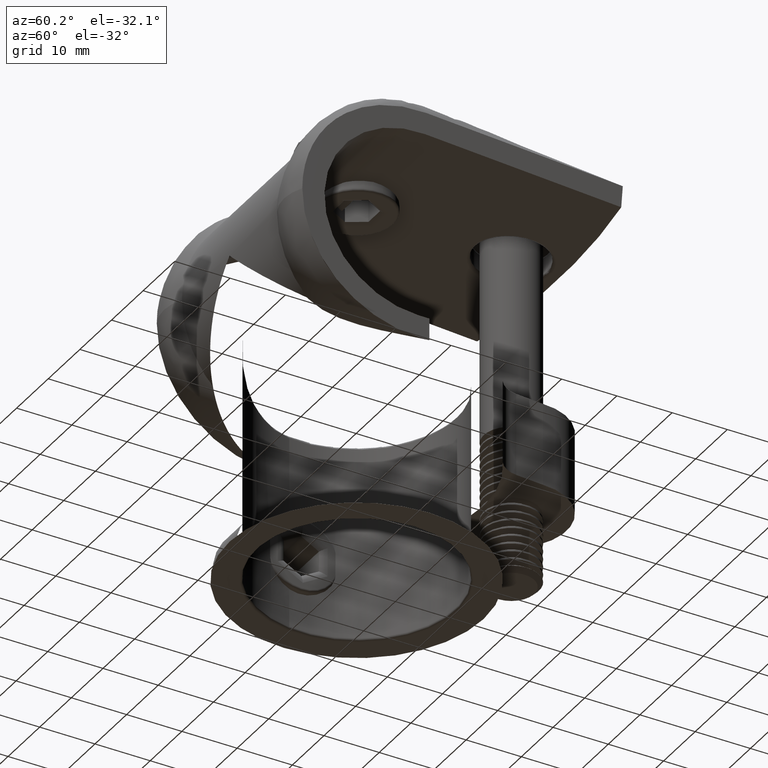
[diagram: clean part render]
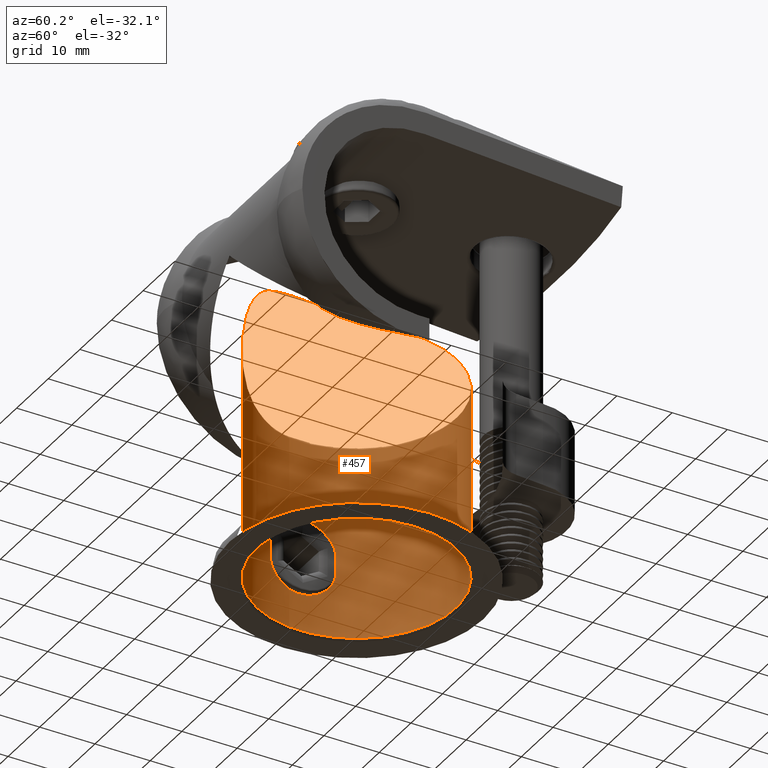
[diagram: same view with one face highlighted and labeled with its STEP entity id]
A machine part, auxiliary view. The second image highlights one B-rep face of the part: STEP entity #457.
In plain terms, the highlighted cylindrical surface (bore or boss wall) has radius 18 mm, axis along (-0, -0, -1).
Its self-contained STEP definition (entity closure, byte-faithful):
#116 = CARTESIAN_POINT ( 'NONE',  ( 8.376441726515528430, 7.036570935327355336, -9.971899766682488675 ) ) ;
#128 = CARTESIAN_POINT ( 'NONE',  ( -18.00311706206495899, 23.00231811686858663, -44.90948888964420860 ) ) ;
#139 = CARTESIAN_POINT ( 'NONE',  ( 9.661391891254705655, 7.804393148059726393, -10.99975626936639372 ) ) ;
#150 = CARTESIAN_POINT ( 'NONE',  ( -17.57464050303816450, 26.89999921647519088, -43.44382430959328900 ) ) ;
#156 = FACE_OUTER_BOUND ( 'NONE', #5338, .T. ) ;
#160 = CARTESIAN_POINT ( 'NONE',  ( -6.043068241324506040, 6.037130339768427056, -8.257584618828010647 ) ) ;
#167 = CARTESIAN_POINT ( 'NONE',  ( -17.87907390653181139, 25.09070216918209084, -33.47946642581011645 ) ) ;
#174 = CARTESIAN_POINT ( 'NONE',  ( -5.556902635410953195, 5.871130732291701904, -7.928814564883729155 ) ) ;
#184 = CARTESIAN_POINT ( 'NONE',  ( -17.47756140309205719, 27.30747525541713827, -43.03640298034387968 ) ) ;
#199 = CARTESIAN_POINT ( 'NONE',  ( 5.580988802436664287, 5.879010697820971743, -7.944734662180211515 ) ) ;
#218 = ORIENTED_EDGE ( 'NONE', *, *, #937, .T. ) ;
#221 = CARTESIAN_POINT ( 'NONE',  ( 14.56036093117028507, 12.40268317179512003, -15.08231520216788724 ) ) ;
#232 = CARTESIAN_POINT ( 'NONE',  ( -16.63408609707054708, 16.11573910093252593, -16.75033309127001147 ) ) ;
#234 = DIRECTION ( 'NONE',  ( -1.000000000000000000, 0.000000000000000000, 0.000000000000000000 ) ) ;
#372 = B_SPLINE_CURVE_WITH_KNOTS ( 'NONE', 3,
 ( #4212, #2445, #1527, #2875, #2005, #3345, #167, #638, #5587, #1587, #3805, #2856, #5105, #2427, #2024, #4657, #5567, #5141, #1053, #2459, #1099, #3765, #1543, #4638, #1031, #1505, #4710, #4252, #2477, #1984, #2896, #5543, #184, #150, #3366, #3784, #659, #614, #3324, #1561, #576, #1079, #128, #3828, #1116, #4273, #2042, #4230, #4678, #5121, #5160, #5606, #2916, #3286, #3743, #3299, #5527, #4197, #1970, #5087, #2400, #2839, #595, #3381, #1691, #756, #2146, #1609, #4795, #1675, #1227, #737, #4375, #3473, #5720, #2062, #4360, #4292, #4820, #3912, #1203, #2122, #5201, #5679, #3888 ),
 .UNSPECIFIED., .T., .F.,
 ( 4, 2, 2, 2, 2, 2, 2, 2, 2, 2, 2, 2, 2, 2, 2, 2, 2, 2, 2, 2, 2, 1, 2, 2, 2, 2, 2, 2, 2, 2, 2, 2, 2, 2, 2, 2, 2, 2, 2, 2, 2, 2, 4 ),
 ( 0.000000000000000000, 0.001160811589519373513, 0.001741217384279055390, 0.002321623179038737484, 0.003482434768558107744, 0.004062840563317792440, 0.004643246358077477570, 0.005804057947596848697, 0.006964869537116218957, 0.007545275331875912761, 0.008125681126635607432, 0.009286492716154974222, 0.01044730430567434101, 0.01160811589519370954, 0.01276892748471307633, 0.01334933327947275886, 0.01392973907423244138, 0.01509055066375181511, 0.01625136225327119058, 0.01741217384279056257, 0.01799257963755025377, 0.01857298543230994498, 0.01915339122706963618, 0.01973379702182932391, 0.02089460861134870978, 0.02205542020086809565, 0.02321623179038748153, 0.02379663758514717620, 0.02437704337990686740, 0.02553785496942627062, 0.02669866655894567037, 0.02727907235370538239, 0.02785947814846509440, 0.02902028973798449415, 0.02960069553274420617, 0.03018110132750391819, 0.03134191291702334570, 0.03250272450654276973, 0.03366353609606220071, 0.03482434768558163168, 0.03540475348034133329, 0.03598515927510104184, 0.03714597086462046588 ),
 .UNSPECIFIED. ) ;
#457 = ADVANCED_FACE ( 'NONE', ( #4758, #1830, #156 ), #3434, .F. ) ;
#576 = CARTESIAN_POINT ( 'NONE',  ( -17.98428541186951435, 23.77652803059976350, -44.85191010644577858 ) ) ;
#595 = CARTESIAN_POINT ( 'NONE',  ( -17.00898940648080426, 17.10977923203401829, -39.39173104313331919 ) ) ;
#604 = CARTESIAN_POINT ( 'NONE',  ( 10.90277062508227601, 8.668723651592374679, -12.01746163087847918 ) ) ;
#614 = CARTESIAN_POINT ( 'NONE',  ( -17.90174274938575394, 24.91202523317969408, -44.59483906549273513 ) ) ;
#624 = CARTESIAN_POINT ( 'NONE',  ( 2.975492180590798785, 5.245355320503000129, -6.501723911435733250 ) ) ;
#638 = CARTESIAN_POINT ( 'NONE',  ( -17.81108740277110414, 25.62572709789984415, -33.70237192478785460 ) ) ;
#646 = CARTESIAN_POINT ( 'NONE',  ( -0.2856312236139630367, 4.999618592261628081, -5.829842644616947567 ) ) ;
#659 = CARTESIAN_POINT ( 'NONE',  ( -17.81153114406773241, 25.62251639869160513, -44.29910109355099479 ) ) ;
#699 = EDGE_CURVE ( 'NONE', #4788, #4788, #891, .T. ) ;
#700 = CARTESIAN_POINT ( 'NONE',  ( -9.651290436795774141, 7.797871800730640679, -10.99155327237942181 ) ) ;
#737 = CARTESIAN_POINT ( 'NONE',  ( -17.25878586106731305, 17.88293666179655972, -36.03770373726128895 ) ) ;
#756 = CARTESIAN_POINT ( 'NONE',  ( -17.01890417819681645, 17.13797443875403914, -38.22692924561730621 ) ) ;
#764 = CARTESIAN_POINT ( 'NONE',  ( 17.76132429056892548, 19.82935641491817691, -17.49999999999999645 ) ) ;
#891 = CIRCLE ( 'NONE', #4556, 18.00000000000000000 ) ;
#915 = CARTESIAN_POINT ( 'NONE',  ( -17.89450458591845106, 21.05405405405405261, -17.49999999999999645 ) ) ;
#937 = EDGE_CURVE ( 'NONE', #3606, #3161, #5229, .T. ) ;
#1031 = CARTESIAN_POINT ( 'NONE',  ( -17.01915165223730497, 28.86130564932253506, -39.77774558754435219 ) ) ;
#1053 = CARTESIAN_POINT ( 'NONE',  ( -17.11150574395776403, 28.58568974881148961, -37.09012257357328224 ) ) ;
#1069 = CARTESIAN_POINT ( 'NONE',  ( -1.195437389681522911, 5.037204851029116526, -5.938223120499601215 ) ) ;
#1079 = CARTESIAN_POINT ( 'NONE',  ( -17.99683111490735143, 23.38934223941499013, -44.89035315552785477 ) ) ;
#1099 = CARTESIAN_POINT ( 'NONE',  ( -17.05791890745996042, 28.74708858715892745, -37.65137262255640138 ) ) ;
#1116 = CARTESIAN_POINT ( 'NONE',  ( -17.98452266119693022, 22.22906716862980403, -44.85263858329369668 ) ) ;
#1145 = CARTESIAN_POINT ( 'NONE',  ( -16.03019594291049899, 14.79301454386435388, -16.28344132866265426 ) ) ;
#1170 = CARTESIAN_POINT ( 'NONE',  ( -13.20578275237545007, 10.72147415217250099, -13.94737273958749135 ) ) ;
#1203 = CARTESIAN_POINT ( 'NONE',  ( -17.93540062380836275, 21.46495314429629886, -33.29986855530708567 ) ) ;
#1227 = CARTESIAN_POINT ( 'NONE',  ( -17.20283744319016606, 17.70033717758181169, -36.37862281734148695 ) ) ;
#1362 = AXIS2_PLACEMENT_3D ( 'NONE', #3975, #4416, #3076 ) ;
#1405 = DIRECTION ( 'NONE',  ( -0.000000000000000000, -0.000000000000000000, -1.000000000000000000 ) ) ;
#1505 = CARTESIAN_POINT ( 'NONE',  ( -17.07068522228262353, 28.70947746456484850, -40.53676907678129737 ) ) ;
#1527 = CARTESIAN_POINT ( 'NONE',  ( -17.98717257762173105, 23.77832397159896161, -33.13881191724175324 ) ) ;
#1543 = CARTESIAN_POINT ( 'NONE',  ( -17.00568102849274510, 28.89972989534653536, -38.60808581871145151 ) ) ;
#1561 = CARTESIAN_POINT ( 'NONE',  ( -17.97479143316935435, 23.97131356934926671, -44.82275234891640991 ) ) ;
#1577 = CARTESIAN_POINT ( 'NONE',  ( -0.5925926847205121861, 5.007226060816631907, -5.852103912786106754 ) ) ;
#1587 = CARTESIAN_POINT ( 'NONE',  ( -17.66837475630170928, 26.44310302542669078, -34.20499769141130741 ) ) ;
#1609 = CARTESIAN_POINT ( 'NONE',  ( -17.07374223822007053, 17.29992215083951024, -37.46479496417675392 ) ) ;
#1614 = CARTESIAN_POINT ( 'NONE',  ( -15.48161497932865771, 13.79992446350829383, -15.84211697844726352 ) ) ;
#1633 = CARTESIAN_POINT ( 'NONE',  ( -12.47269277135292675, 9.981436740807263064, -13.32794920306549358 ) ) ;
#1675 = CARTESIAN_POINT ( 'NONE',  ( -17.13244950945039946, 17.47866100133582634, -36.91150131599250273 ) ) ;
#1691 = CARTESIAN_POINT ( 'NONE',  ( -17.00557107883708596, 17.09995319636546895, -38.61186392521690181 ) ) ;
#1830 = FACE_OUTER_BOUND ( 'NONE', #3341, .T. ) ;
#1970 = CARTESIAN_POINT ( 'NONE',  ( -17.10866412762710809, 17.40373826119378009, -40.90860596324937148 ) ) ;
#1978 = CARTESIAN_POINT ( 'NONE',  ( 2.412828332255598784, 5.160178788703827735, -6.278534655855914082 ) ) ;
#1984 = CARTESIAN_POINT ( 'NONE',  ( -17.34957608297570175, 27.79629614414523431, -42.44124700197663458 ) ) ;
#2005 = CARTESIAN_POINT ( 'NONE',  ( -17.93545123641109029, 24.53444511228155633, -33.29970975619978901 ) ) ;
#2016 = CARTESIAN_POINT ( 'NONE',  ( 10.08069329119053315, 8.079024433820318762, -11.34116518579703836 ) ) ;
#2024 = CARTESIAN_POINT ( 'NONE',  ( -17.38064418402432665, 27.68651454871109152, -35.39490578218196504 ) ) ;
#2030 = DIRECTION ( 'NONE',  ( -0.000000000000000000, -0.000000000000000000, -1.000000000000000000 ) ) ;
#2033 = CARTESIAN_POINT ( 'NONE',  ( 6.068553788389625225, 6.046250307925289391, -8.275088856519749569 ) ) ;
#2042 = CARTESIAN_POINT ( 'NONE',  ( -17.93815181737340581, 21.46055812818648079, -44.70898769367215664 ) ) ;
#2062 = CARTESIAN_POINT ( 'NONE',  ( -17.63896396125250021, 19.39830361815787896, -34.31116466055146930 ) ) ;
#2068 = CARTESIAN_POINT ( 'NONE',  ( -14.56198389799760307, 12.40485240701584502, -15.08367014774809967 ) ) ;
#2091 = CARTESIAN_POINT ( 'NONE',  ( -17.76105417096619021, 19.82687245256555642, -17.49999999999999289 ) ) ;
#2112 = CARTESIAN_POINT ( 'NONE',  ( 16.77037765168782713, 16.35127244617876485, -16.86241827533488902 ) ) ;
#2122 = CARTESIAN_POINT ( 'NONE',  ( -17.95051849981981462, 21.65279658060931212, -33.25261767314646733 ) ) ;
#2146 = CARTESIAN_POINT ( 'NONE',  ( -17.05760731045399936, 17.25198785498994170, -37.65534320408048785 ) ) ;
#2297 = CARTESIAN_POINT ( 'NONE',  ( 17.89450458591845106, 21.05405405405405261, -17.49999999999999645 ) ) ;
#2392 = CARTESIAN_POINT ( 'NONE',  ( 1.241103950718915216, 5.033127145324733931, -5.929060472328947284 ) ) ;
#2400 = CARTESIAN_POINT ( 'NONE',  ( -17.03230930502728668, 17.17745328598185495, -39.97222138850908379 ) ) ;
#2416 = CARTESIAN_POINT ( 'NONE',  ( -1.492688301682853158, 5.059570804225121066, -6.002015961121762722 ) ) ;
#2427 = CARTESIAN_POINT ( 'NONE',  ( -17.44516989451449618, 27.44331940153860216, -35.09964009327779877 ) ) ;
#2438 = CARTESIAN_POINT ( 'NONE',  ( -2.936873564719619356, 5.238904054466787308, -6.485113003152574329 ) ) ;
#2445 = CARTESIAN_POINT ( 'NONE',  ( -18.00000000000000711, 23.39270341838368239, -33.10000000000001563 ) ) ;
#2459 = CARTESIAN_POINT ( 'NONE',  ( -17.07410604012345701, 28.69898778083412338, -37.46081189328422312 ) ) ;
#2467 = CARTESIAN_POINT ( 'NONE',  ( 12.48116604565449528, 9.989189467803528899, -13.33506268775265013 ) ) ;
#2477 = CARTESIAN_POINT ( 'NONE',  ( -17.25914762080438081, 28.11574151502025387, -41.96407477559550614 ) ) ;
#2487 = CARTESIAN_POINT ( 'NONE',  ( 15.48148422568800697, 13.79972476249954383, -15.84200897217243131 ) ) ;
#2502 = CARTESIAN_POINT ( 'NONE',  ( -14.23112394165704053, 11.96533484278421788, -14.80729701056540470 ) ) ;
#2517 = ORIENTED_EDGE ( 'NONE', *, *, #5638, .T. ) ;
#2570 = CARTESIAN_POINT ( 'NONE',  ( 16.30392434157062809, 15.28846810495450903, -16.50365694716815668 ) ) ;
#2720 = CARTESIAN_POINT ( 'NONE',  ( 0.000000000000000000, 23.00000000000000000, -52.50000000000000000 ) ) ;
#2747 = CARTESIAN_POINT ( 'NONE',  ( 18.00000000000000000, 23.00000000000000000, -52.50000000000000000 ) ) ;
#2829 = CARTESIAN_POINT ( 'NONE',  ( 7.485372648966487574, 6.598869212078381175, -9.280097992025536868 ) ) ;
#2839 = CARTESIAN_POINT ( 'NONE',  ( -17.02237891787811108, 17.14858672615473267, -39.78045922648106369 ) ) ;
#2847 = CARTESIAN_POINT ( 'NONE',  ( 4.056659457355966225, 5.454506106831741974, -7.019871037014809190 ) ) ;
#2856 = CARTESIAN_POINT ( 'NONE',  ( -17.57384035995511695, 26.89657014478468255, -34.56560858133587288 ) ) ;
#2865 = CARTESIAN_POINT ( 'NONE',  ( 3.249797088538107115, 5.293672617948990577, -6.624927324031737896 ) ) ;
#2875 = CARTESIAN_POINT ( 'NONE',  ( -17.95055672793759172, 24.34668279211270914, -33.25249846072349413 ) ) ;
#2896 = CARTESIAN_POINT ( 'NONE',  ( -17.38084858395455257, 27.68209647608259516, -42.59513346475288387 ) ) ;
#2916 = CARTESIAN_POINT ( 'NONE',  ( -17.47758170131413280, 18.69259383135463537, -43.03650253837422213 ) ) ;
#2937 = CARTESIAN_POINT ( 'NONE',  ( -10.90214162459159830, 8.668136647089761837, -12.01692543873711472 ) ) ;
#3076 = DIRECTION ( 'NONE',  ( -1.000000000000000000, 0.000000000000000000, 0.000000000000000000 ) ) ;
#3131 = ORIENTED_EDGE ( 'NONE', *, *, #4452, .T. ) ;
#3161 = VERTEX_POINT ( 'NONE', #2297 ) ;
#3177 = CIRCLE ( 'NONE', #1362, 18.00000000000000000 ) ;
#3286 = CARTESIAN_POINT ( 'NONE',  ( -17.44484408004706566, 18.56229098270984679, -42.89275684146645062 ) ) ;
#3299 = CARTESIAN_POINT ( 'NONE',  ( -17.34985898346127442, 18.20472998486349780, -42.44266028467218632 ) ) ;
#3312 = CARTESIAN_POINT ( 'NONE',  ( -3.212723949179295602, 5.286884836296865231, -6.607837926865524736 ) ) ;
#3324 = CARTESIAN_POINT ( 'NONE',  ( -17.93774711250654974, 24.54387078200262806, -44.70771783427771595 ) ) ;
#3341 = EDGE_LOOP ( 'NONE', ( #3546 ) ) ;
#3345 = CARTESIAN_POINT ( 'NONE',  ( -17.89972170056705636, 24.90654029554410087, -33.41314625503447644 ) ) ;
#3356 = CARTESIAN_POINT ( 'NONE',  ( -4.545986581689826167, 5.575553515569710683, -7.300191727388349427 ) ) ;
#3366 = CARTESIAN_POINT ( 'NONE',  ( -17.63827671402480135, 26.60502672295831772, -43.68625363679301188 ) ) ;
#3381 = CARTESIAN_POINT ( 'NONE',  ( -17.00559545853576537, 17.10002346604306211, -39.19513424395503165 ) ) ;
#3412 = CARTESIAN_POINT ( 'NONE',  ( -16.28473387872883649, 15.30903672198873444, -16.48401437432729466 ) ) ;
#3434 = CYLINDRICAL_SURFACE ( 'NONE', #4628, 18.00000000000000000 ) ;
#3444 = CARTESIAN_POINT ( 'NONE',  ( 17.50677655990395465, 18.64524178090564277, -17.36588141109218597 ) ) ;
#3473 = CARTESIAN_POINT ( 'NONE',  ( -17.44510428374086430, 18.55640193328051168, -35.09991252112185833 ) ) ;
#3546 = ORIENTED_EDGE ( 'NONE', *, *, #699, .T. ) ;
#3606 = VERTEX_POINT ( 'NONE', #915 ) ;
#3722 = CARTESIAN_POINT ( 'NONE',  ( -18.00000000000000000, 23.00000000000000000, -33.10000000000000142 ) ) ;
#3743 = CARTESIAN_POINT ( 'NONE',  ( -17.38107101786412301, 18.31873771603688539, -42.59619251120773242 ) ) ;
#3753 = CARTESIAN_POINT ( 'NONE',  ( 0.6405667933398713210, 5.000807288572744369, -5.833299737211139480 ) ) ;
#3765 = CARTESIAN_POINT ( 'NONE',  ( -17.01905417946402821, 28.86159479706646280, -38.22347017933986280 ) ) ;
#3775 = CARTESIAN_POINT ( 'NONE',  ( 2.122484475512682600, 5.123135776950504372, -6.178039929145909603 ) ) ;
#3784 = CARTESIAN_POINT ( 'NONE',  ( -17.75661370459009802, 25.96777574282764789, -44.11365798248996839 ) ) ;
#3793 = CARTESIAN_POINT ( 'NONE',  ( 11.30706518936949401, 8.985170320538069078, -12.35365851088923783 ) ) ;
#3805 = CARTESIAN_POINT ( 'NONE',  ( -17.63716441117174938, 26.59910480865881865, -34.32094766823043130 ) ) ;
#3828 = CARTESIAN_POINT ( 'NONE',  ( -17.99693415059093482, 22.61561222589132569, -44.89066735236833949 ) ) ;
#3871 = CARTESIAN_POINT ( 'NONE',  ( -17.89450458591845106, 21.05405405405405261, -17.49999999999999645 ) ) ;
#3888 = CARTESIAN_POINT ( 'NONE',  ( -18.00000000000000355, 23.00000000000000711, -33.10000000000000853 ) ) ;
#3912 = CARTESIAN_POINT ( 'NONE',  ( -17.89964073548217982, 21.09269144437037724, -33.41340520445552187 ) ) ;
#3975 = CARTESIAN_POINT ( 'NONE',  ( 0.000000000000000000, 23.00000000000000000, -17.49999999999999645 ) ) ;
#4035 = EDGE_LOOP ( 'NONE', ( #3131 ) ) ;
#4197 = CARTESIAN_POINT ( 'NONE',  ( -17.20346101714162401, 17.70231534414610408, -41.62592068793168920 ) ) ;
#4212 = CARTESIAN_POINT ( 'NONE',  ( -18.00000000000000355, 23.00000000000000711, -33.10000000000000853 ) ) ;
#4221 = CARTESIAN_POINT ( 'NONE',  ( -2.371265663757283093, 5.154584491431110749, -6.263537323233654419 ) ) ;
#4230 = CARTESIAN_POINT ( 'NONE',  ( -17.90213231958592388, 21.09148517231886899, -44.59608777703291338 ) ) ;
#4252 = CARTESIAN_POINT ( 'NONE',  ( -17.20311213674464668, 28.29881433728440143, -41.62366305992527060 ) ) ;
#4265 = CARTESIAN_POINT ( 'NONE',  ( -2.080089490286556764, 5.118155972971021761, -6.164431084639246272 ) ) ;
#4273 = CARTESIAN_POINT ( 'NONE',  ( -17.97512749799917842, 22.03481379742996538, -44.82378923340866095 ) ) ;
#4292 = CARTESIAN_POINT ( 'NONE',  ( -17.81100544904250071, 20.37373996680792843, -33.70264785785483497 ) ) ;
#4297 = CARTESIAN_POINT ( 'NONE',  ( -17.50673172371654118, 18.64848859039159734, -17.36550376532327888 ) ) ;
#4322 = CARTESIAN_POINT ( 'NONE',  ( -15.18755525454560562, 13.32287785791748824, -15.60133758373496526 ) ) ;
#4360 = CARTESIAN_POINT ( 'NONE',  ( -17.75730416152024915, 20.03631726249331280, -33.88394895462908352 ) ) ;
#4375 = CARTESIAN_POINT ( 'NONE',  ( -17.38060571238017005, 18.31336243388284757, -35.39514706551282330 ) ) ;
#4416 = DIRECTION ( 'NONE',  ( -0.000000000000000000, -0.000000000000000000, 1.000000000000000000 ) ) ;
#4452 = EDGE_CURVE ( 'NONE', #4585, #4585, #372, .T. ) ;
#4555 = DIRECTION ( 'NONE',  ( 1.000000000000000000, 0.000000000000000000, 0.000000000000000000 ) ) ;
#4556 = AXIS2_PLACEMENT_3D ( 'NONE', #2720, #1405, #4555 ) ;
#4585 = VERTEX_POINT ( 'NONE', #3722 ) ;
#4628 = AXIS2_PLACEMENT_3D ( 'NONE', #4701, #2030, #234 ) ;
#4638 = CARTESIAN_POINT ( 'NONE',  ( -17.00549458824319871, 28.90026727276949003, -39.38373906945457037 ) ) ;
#4657 = CARTESIAN_POINT ( 'NONE',  ( -17.25859341889247034, 28.11773036299300443, -36.03875720915604575 ) ) ;
#4678 = CARTESIAN_POINT ( 'NONE',  ( -17.81184229695784893, 20.37949538757414203, -44.30014932166922392 ) ) ;
#4687 = CARTESIAN_POINT ( 'NONE',  ( -7.462480687864000650, 6.588361888571407476, -9.262755900073633697 ) ) ;
#4701 = CARTESIAN_POINT ( 'NONE',  ( 0.000000000000000000, 23.00000000000000000, 24.32095415120095439 ) ) ;
#4703 = CARTESIAN_POINT ( 'NONE',  ( 13.21371314291540244, 10.73046049586676176, -13.95404214098245887 ) ) ;
#4710 = CARTESIAN_POINT ( 'NONE',  ( -17.10836139265249756, 28.59718420536786354, -40.90593027265105519 ) ) ;
#4740 = CARTESIAN_POINT ( 'NONE',  ( -17.05246278792691683, 17.22918163810354741, -17.05535892282599875 ) ) ;
#4758 = FACE_BOUND ( 'NONE', #4035, .T. ) ;
#4759 = CARTESIAN_POINT ( 'NONE',  ( -10.07495447211697126, 8.075044671627507498, -11.33646292339463280 ) ) ;
#4788 = VERTEX_POINT ( 'NONE', #2747 ) ;
#4795 = CARTESIAN_POINT ( 'NONE',  ( -17.11116326269951671, 17.41326094211366993, -37.09314691504705763 ) ) ;
#4820 = CARTESIAN_POINT ( 'NONE',  ( -17.87898127721233266, 20.90851303947840734, -33.47976652088645722 ) ) ;
#5087 = CARTESIAN_POINT ( 'NONE',  ( -17.07099925288398623, 17.29146021261085409, -40.54001044041517332 ) ) ;
#5105 = CARTESIAN_POINT ( 'NONE',  ( -17.54169907914352322, 27.03832309318067217, -34.69437341707418199 ) ) ;
#5115 = CARTESIAN_POINT ( 'NONE',  ( -4.024368246162698171, 5.446976439250183155, -7.002145634064341984 ) ) ;
#5121 = CARTESIAN_POINT ( 'NONE',  ( -17.75695231118913853, 20.03424019209015583, -44.11482916825408296 ) ) ;
#5141 = CARTESIAN_POINT ( 'NONE',  ( -17.13276529578712015, 28.52035730853886975, -36.90895179534332726 ) ) ;
#5151 = CARTESIAN_POINT ( 'NONE',  ( 14.23365530611961915, 11.96872580826411969, -14.80941070019471262 ) ) ;
#5160 = CARTESIAN_POINT ( 'NONE',  ( -17.63864845964051398, 19.39678377872212423, -43.68764775994915794 ) ) ;
#5182 = CARTESIAN_POINT ( 'NONE',  ( -16.74548256440580118, 16.39111983519443427, -16.83359881147136150 ) ) ;
#5189 = CARTESIAN_POINT ( 'NONE',  ( 17.89450458591845106, 21.05405405405405261, -17.49999999999999645 ) ) ;
#5201 = CARTESIAN_POINT ( 'NONE',  ( -17.98716361360887106, 22.22139162627747311, -33.13883871085645438 ) ) ;
#5205 = CARTESIAN_POINT ( 'NONE',  ( -16.95471108955111816, 16.94803707732511810, -16.98613279303993195 ) ) ;
#5229 = B_SPLINE_CURVE_WITH_KNOTS ( 'NONE', 3,
 ( #3871, #2091, #4297, #4740, #5205, #5182, #232, #3412, #1145, #1614, #4322, #2068, #2502, #1170, #1633, #5640, #2937, #4759, #700, #5533, #4687, #160, #174, #3356, #5115, #3312, #2438, #4221, #4265, #2416, #1069, #1577, #646, #3753, #2392, #3775, #1978, #624, #2865, #2847, #5520, #199, #2033, #2829, #116, #139, #2016, #604, #3793, #2467, #4703, #5151, #221, #5685, #2487, #2570, #2112, #3444, #764, #5189 ),
 .UNSPECIFIED., .F., .F.,
 ( 4, 2, 2, 2, 2, 2, 2, 2, 2, 2, 2, 2, 2, 2, 2, 2, 2, 2, 2, 2, 2, 2, 2, 2, 2, 2, 2, 2, 2, 4 ),
 ( 0.000000000000000000, 0.003636322287257476912, 0.004545402859071845381, 0.005454483430886216018, 0.007272644574514952089, 0.009090805718143690761, 0.01090896686177242683, 0.01454528914902989724, 0.01636345029265863157, 0.01818161143628736764, 0.02181793372354483632, 0.02363609486717357586, 0.02545425601080230846, 0.02636333658261667823, 0.02727241715443104800, 0.02818149772624541430, 0.02909057829805978060, 0.03090873944168852361, 0.03181782001350288991, 0.03272690058531725621, 0.03454506172894599575, 0.03636322287257472141, 0.03999954515983219355, 0.04181770630346093309, 0.04363586744708966569, 0.04727218973434713783, 0.04909035087797586350, 0.05090851202160459610, 0.05454483430886205436, 0.05818115659611951263 ),
 .UNSPECIFIED. ) ;
#5338 = EDGE_LOOP ( 'NONE', ( #2517, #218 ) ) ;
#5520 = CARTESIAN_POINT ( 'NONE',  ( 4.573468149195174526, 5.582792996965629584, -7.316385330548171417 ) ) ;
#5527 = CARTESIAN_POINT ( 'NONE',  ( -17.25954637149120074, 17.88561400492876885, -41.96633668155271835 ) ) ;
#5533 = CARTESIAN_POINT ( 'NONE',  ( -8.357591628191148203, 7.026299811690011055, -9.957072139218171358 ) ) ;
#5543 = CARTESIAN_POINT ( 'NONE',  ( -17.44478711367881374, 27.43794180540093208, -42.89251648327987709 ) ) ;
#5567 = CARTESIAN_POINT ( 'NONE',  ( -17.20303049989382416, 28.29902892968020112, -36.37748173791709405 ) ) ;
#5587 = CARTESIAN_POINT ( 'NONE',  ( -17.75732823972964169, 25.96361159361142512, -33.88384630268927822 ) ) ;
#5606 = CARTESIAN_POINT ( 'NONE',  ( -17.57493418009823216, 19.10126575971195351, -43.44502799761134071 ) ) ;
#5638 = EDGE_CURVE ( 'NONE', #3161, #3606, #3177, .T. ) ;
#5640 = CARTESIAN_POINT ( 'NONE',  ( -11.30356394800855568, 8.982432249180249073, -12.35074749038017927 ) ) ;
#5679 = CARTESIAN_POINT ( 'NONE',  ( -18.00000000000000355, 22.60729658161631406, -33.10000000000000142 ) ) ;
#5685 = CARTESIAN_POINT ( 'NONE',  ( 15.18481694396673376, 13.31864840109991732, -15.59908343949341436 ) ) ;
#5720 = CARTESIAN_POINT ( 'NONE',  ( -17.57396469120370242, 19.09705338475234271, -34.55891298892015584 ) ) ;